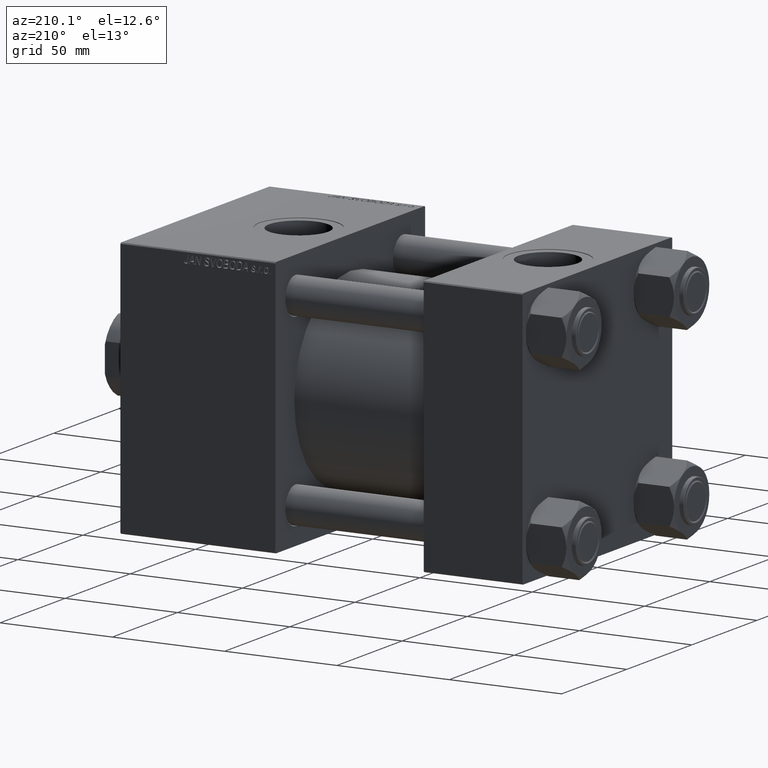
[diagram: clean part render]
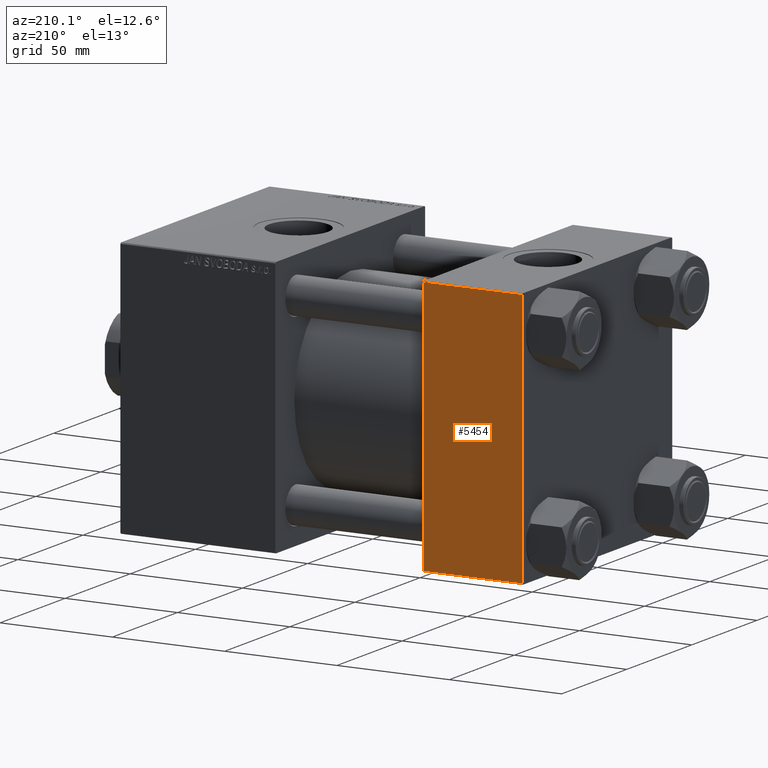
[diagram: same view with one face highlighted and labeled with its STEP entity id]
A machine part, auxiliary view. The second image highlights one B-rep face of the part: STEP entity #5454.
In plain terms, the highlighted planar face has unit normal (0, 1, 0).
Its self-contained STEP definition (entity closure, byte-faithful):
#102 = LINE ( 'NONE', #24025, #25773 ) ;
#438 = ORIENTED_EDGE ( 'NONE', *, *, #13746, .T. ) ;
#1773 = EDGE_CURVE ( 'NONE', #24201, #41467, #25058, .T. ) ;
#2490 = VECTOR ( 'NONE', #28911, 1000.000000000000000 ) ;
#5454 = ADVANCED_FACE ( 'NONE', ( #49742 ), #22807, .T. ) ;
#13746 = EDGE_CURVE ( 'NONE', #21463, #46826, #102, .T. ) ;
#15104 = CARTESIAN_POINT ( 'NONE',  ( 0.000000000000000000, 57.49999999999999289, -57.00000000000000711 ) ) ;
#16055 = DIRECTION ( 'NONE',  ( 1.000000000000000000, 0.000000000000000000, 0.000000000000000000 ) ) ;
#16541 = CARTESIAN_POINT ( 'NONE',  ( 0.000000000000000000, 57.49999999999999289, 57.50000000000000711 ) ) ;
#17698 = EDGE_CURVE ( 'NONE', #46826, #24201, #22761, .T. ) ;
#17826 = CARTESIAN_POINT ( 'NONE',  ( 0.000000000000000000, 57.49999999999999289, 57.00000000000003553 ) ) ;
#19088 = AXIS2_PLACEMENT_3D ( 'NONE', #23067, #26653, #27164 ) ;
#20150 = LINE ( 'NONE', #16541, #31068 ) ;
#21463 = VERTEX_POINT ( 'NONE', #17826 ) ;
#22761 = LINE ( 'NONE', #46357, #35750 ) ;
#22807 = PLANE ( 'NONE',  #19088 ) ;
#23067 = CARTESIAN_POINT ( 'NONE',  ( 44.00000000000000000, 57.49999999999999289, 57.50000000000000711 ) ) ;
#24025 = CARTESIAN_POINT ( 'NONE',  ( 44.00000000000000000, 57.49999999999999289, 57.00000000000003553 ) ) ;
#24201 = VERTEX_POINT ( 'NONE', #30518 ) ;
#25058 = LINE ( 'NONE', #48660, #2490 ) ;
#25773 = VECTOR ( 'NONE', #16055, 1000.000000000000000 ) ;
#26146 = ORIENTED_EDGE ( 'NONE', *, *, #28153, .F. ) ;
#26653 = DIRECTION ( 'NONE',  ( -0.000000000000000000, 1.000000000000000000, 0.000000000000000000 ) ) ;
#27164 = DIRECTION ( 'NONE',  ( 0.000000000000000000, -0.000000000000000000, 1.000000000000000000 ) ) ;
#28153 = EDGE_CURVE ( 'NONE', #21463, #41467, #20150, .T. ) ;
#28345 = DIRECTION ( 'NONE',  ( 0.000000000000000000, 0.000000000000000000, -1.000000000000000000 ) ) ;
#28911 = DIRECTION ( 'NONE',  ( -1.000000000000000000, 0.000000000000000000, 0.000000000000000000 ) ) ;
#29689 = DIRECTION ( 'NONE',  ( 0.000000000000000000, 0.000000000000000000, -1.000000000000000000 ) ) ;
#30314 = ORIENTED_EDGE ( 'NONE', *, *, #1773, .T. ) ;
#30518 = CARTESIAN_POINT ( 'NONE',  ( 44.00000000000000000, 57.49999999999999289, -57.00000000000000711 ) ) ;
#31068 = VECTOR ( 'NONE', #28345, 1000.000000000000000 ) ;
#34051 = CARTESIAN_POINT ( 'NONE',  ( 44.00000000000000000, 57.49999999999999289, 57.00000000000003553 ) ) ;
#35750 = VECTOR ( 'NONE', #29689, 1000.000000000000000 ) ;
#40532 = ORIENTED_EDGE ( 'NONE', *, *, #17698, .T. ) ;
#41467 = VERTEX_POINT ( 'NONE', #15104 ) ;
#46357 = CARTESIAN_POINT ( 'NONE',  ( 44.00000000000000000, 57.49999999999999289, 57.50000000000000711 ) ) ;
#46826 = VERTEX_POINT ( 'NONE', #34051 ) ;
#48660 = CARTESIAN_POINT ( 'NONE',  ( 44.00000000000000000, 57.49999999999999289, -57.00000000000000711 ) ) ;
#49742 = FACE_OUTER_BOUND ( 'NONE', #50812, .T. ) ;
#50812 = EDGE_LOOP ( 'NONE', ( #40532, #30314, #26146, #438 ) ) ;